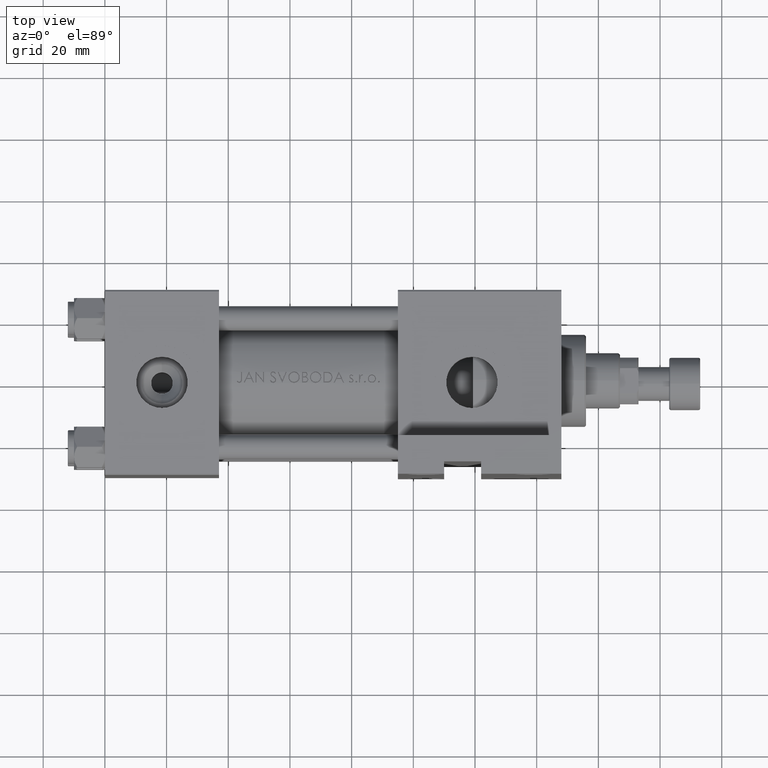
[diagram: clean part render]
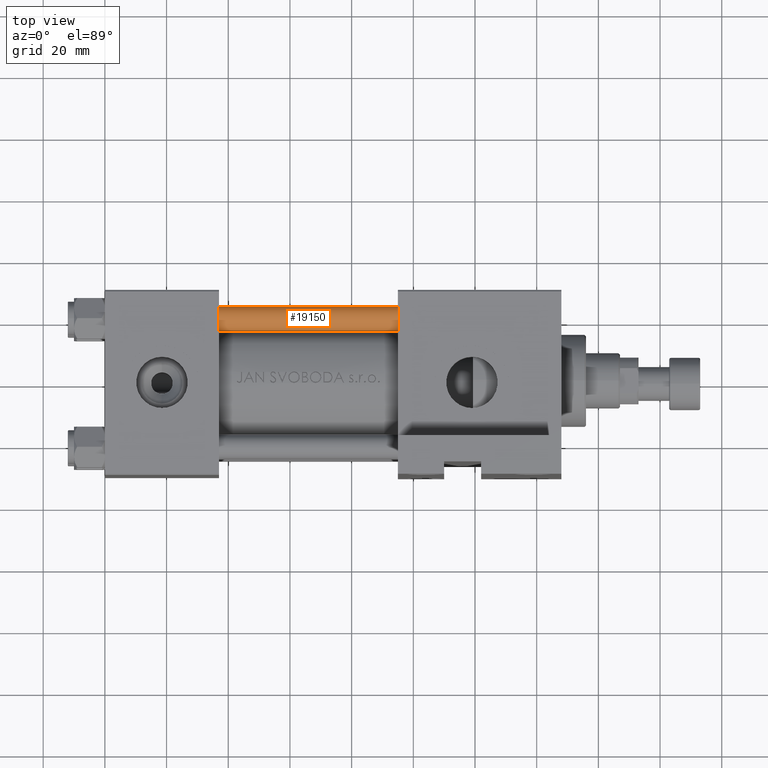
[diagram: same view with one face highlighted and labeled with its STEP entity id]
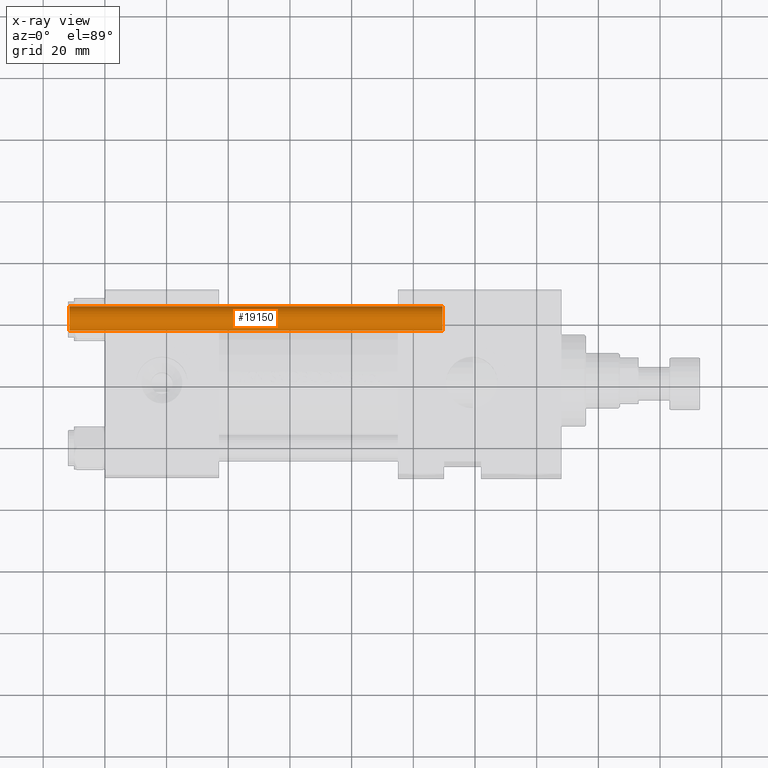
[diagram: x-ray of the same camera — body ghosted, the highlighted face saturated]
A machine part, top view. The second image highlights one B-rep face of the part: STEP entity #19150.
The next image is the same camera in x-ray: the body ghosted, the highlighted face saturated — about 0% of this face is hidden behind the body in this view.
In plain terms, the highlighted cylindrical surface (edge-blend (fillet) strip) has radius 4 mm, axis along (1, -0, 0).
Its self-contained STEP definition (entity closure, byte-faithful):
#633 = AXIS2_PLACEMENT_3D ( 'NONE', #5755, #16477, #24168 ) ;
#2362 = EDGE_CURVE ( 'NONE', #16844, #20638, #34972, .T. ) ;
#3027 = EDGE_CURVE ( 'NONE', #29920, #16844, #16054, .T. ) ;
#4164 = VECTOR ( 'NONE', #19527, 1000.000000000000000 ) ;
#4900 = EDGE_LOOP ( 'NONE', ( #42318, #27757, #6137, #43853 ) ) ;
#5755 = CARTESIAN_POINT ( 'NONE',  ( 0.000000000000000000, 0.000000000000000000, 121.5000000000000426 ) ) ;
#6072 = EDGE_CURVE ( 'NONE', #6954, #20638, #16288, .T. ) ;
#6137 = ORIENTED_EDGE ( 'NONE', *, *, #3027, .T. ) ;
#6954 = VERTEX_POINT ( 'NONE', #33481 ) ;
#7353 = FACE_OUTER_BOUND ( 'NONE', #4900, .T. ) ;
#9371 = CIRCLE ( 'NONE', #633, 4.000000000000000000 ) ;
#9669 = VECTOR ( 'NONE', #43585, 1000.000000000000000 ) ;
#11438 = CARTESIAN_POINT ( 'NONE',  ( 0.000000000000000000, 0.000000000000000000, 0.5000000000000559552 ) ) ;
#12291 = CARTESIAN_POINT ( 'NONE',  ( 4.000000000000000000, 4.898587196589411843E-16, 122.0000000000000000 ) ) ;
#14068 = AXIS2_PLACEMENT_3D ( 'NONE', #26250, #17840, #14569 ) ;
#14569 = DIRECTION ( 'NONE',  ( -1.000000000000000000, 0.000000000000000000, 0.000000000000000000 ) ) ;
#16054 = LINE ( 'NONE', #17047, #9669 ) ;
#16288 = LINE ( 'NONE', #12291, #4164 ) ;
#16477 = DIRECTION ( 'NONE',  ( 0.000000000000000000, 0.000000000000000000, -1.000000000000000000 ) ) ;
#16844 = VERTEX_POINT ( 'NONE', #33439 ) ;
#17047 = CARTESIAN_POINT ( 'NONE',  ( -4.000000000000000000, 0.000000000000000000, 122.0000000000000000 ) ) ;
#17840 = DIRECTION ( 'NONE',  ( -0.000000000000000000, -0.000000000000000000, -1.000000000000000000 ) ) ;
#18326 = CYLINDRICAL_SURFACE ( 'NONE', #14068, 4.000000000000000000 ) ;
#19150 = ADVANCED_FACE ( 'NONE', ( #7353 ), #18326, .T. ) ;
#19527 = DIRECTION ( 'NONE',  ( -0.000000000000000000, -0.000000000000000000, -1.000000000000000000 ) ) ;
#20638 = VERTEX_POINT ( 'NONE', #45534 ) ;
#24168 = DIRECTION ( 'NONE',  ( 1.000000000000000000, 0.000000000000000000, 0.000000000000000000 ) ) ;
#25646 = EDGE_CURVE ( 'NONE', #6954, #29920, #9371, .T. ) ;
#26250 = CARTESIAN_POINT ( 'NONE',  ( 0.000000000000000000, 0.000000000000000000, 122.0000000000000000 ) ) ;
#26612 = DIRECTION ( 'NONE',  ( -0.000000000000000000, -0.000000000000000000, 1.000000000000000000 ) ) ;
#27757 = ORIENTED_EDGE ( 'NONE', *, *, #25646, .T. ) ;
#29920 = VERTEX_POINT ( 'NONE', #38092 ) ;
#33439 = CARTESIAN_POINT ( 'NONE',  ( -4.000000000000000000, 0.000000000000000000, 0.5000000000000559552 ) ) ;
#33481 = CARTESIAN_POINT ( 'NONE',  ( 4.000000000000000000, 4.898587196589411843E-16, 121.5000000000000426 ) ) ;
#34972 = CIRCLE ( 'NONE', #38159, 4.000000000000000000 ) ;
#38092 = CARTESIAN_POINT ( 'NONE',  ( -4.000000000000000000, 0.000000000000000000, 121.5000000000000426 ) ) ;
#38159 = AXIS2_PLACEMENT_3D ( 'NONE', #11438, #26612, #41729 ) ;
#41729 = DIRECTION ( 'NONE',  ( 1.000000000000000000, 0.000000000000000000, 0.000000000000000000 ) ) ;
#42318 = ORIENTED_EDGE ( 'NONE', *, *, #6072, .F. ) ;
#43585 = DIRECTION ( 'NONE',  ( -0.000000000000000000, -0.000000000000000000, -1.000000000000000000 ) ) ;
#43853 = ORIENTED_EDGE ( 'NONE', *, *, #2362, .T. ) ;
#45534 = CARTESIAN_POINT ( 'NONE',  ( 4.000000000000000000, 4.898587196589411843E-16, 0.5000000000000559552 ) ) ;